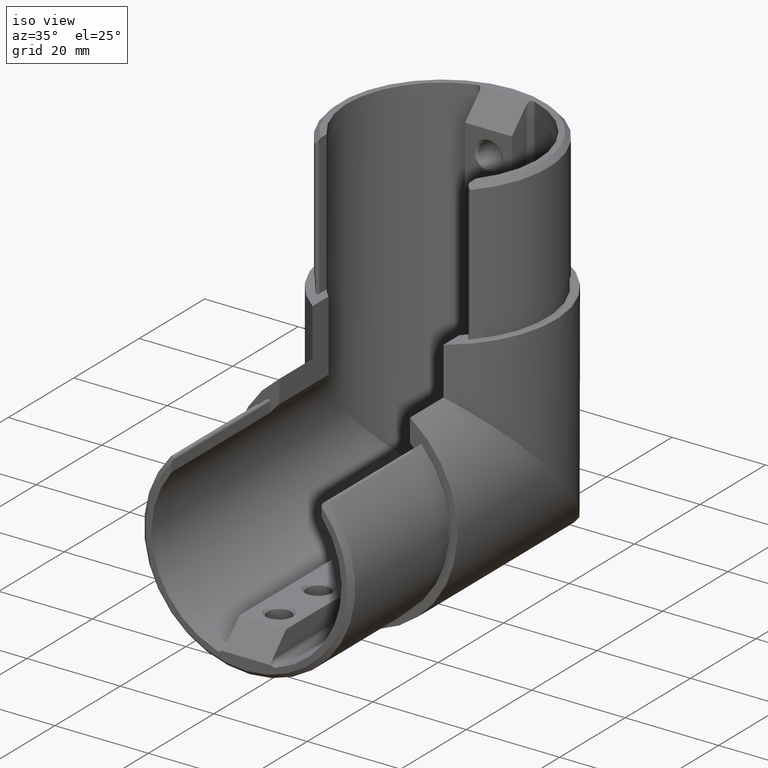
[diagram: clean part render]
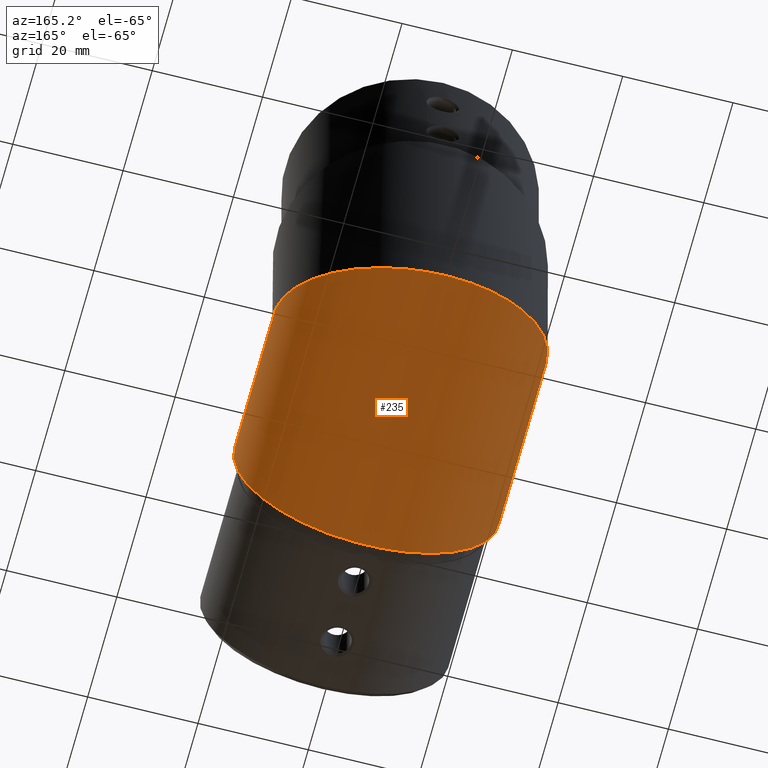
[diagram: tour spotlight — one face highlighted and labeled with its STEP entity id]
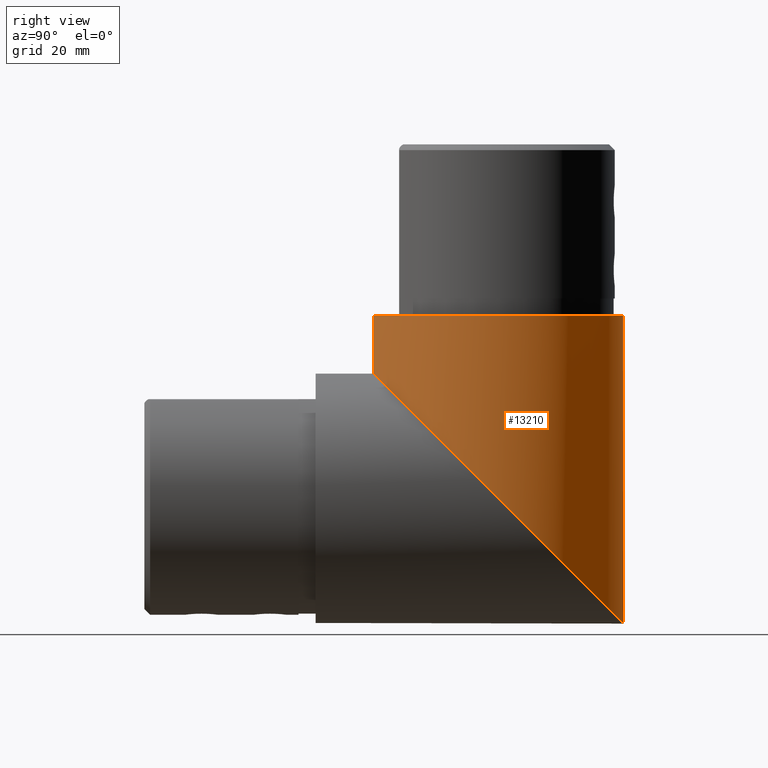
[diagram: tour spotlight — one face highlighted and labeled with its STEP entity id]
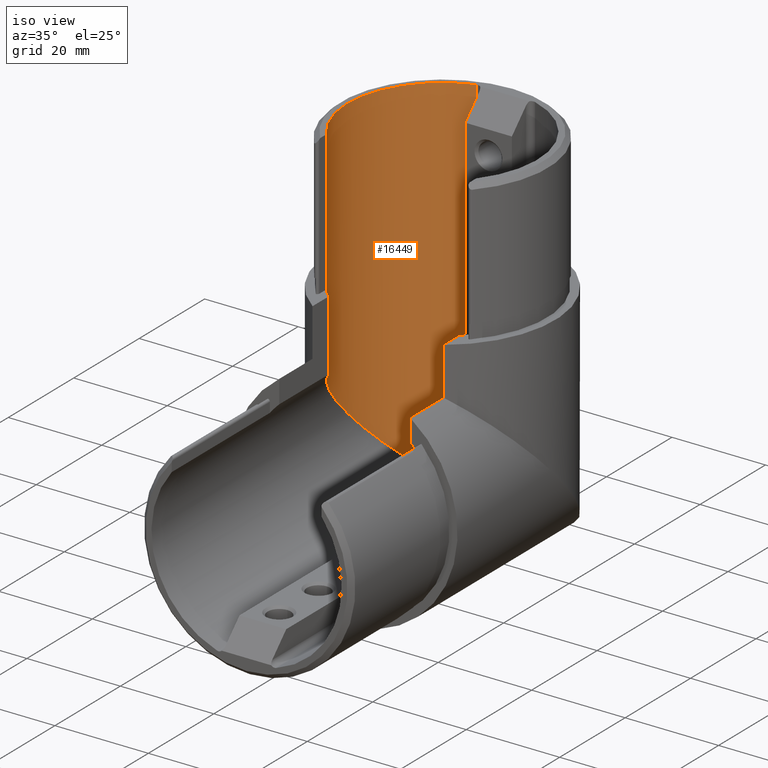
[diagram: tour spotlight — one face highlighted and labeled with its STEP entity id]
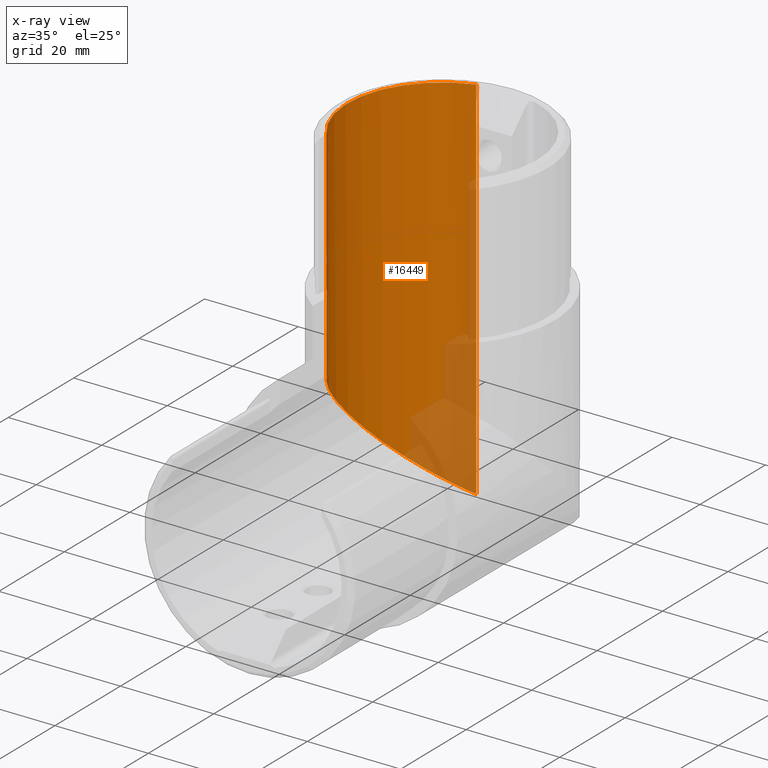
[diagram: x-ray of the same camera — body ghosted, this tour face saturated]
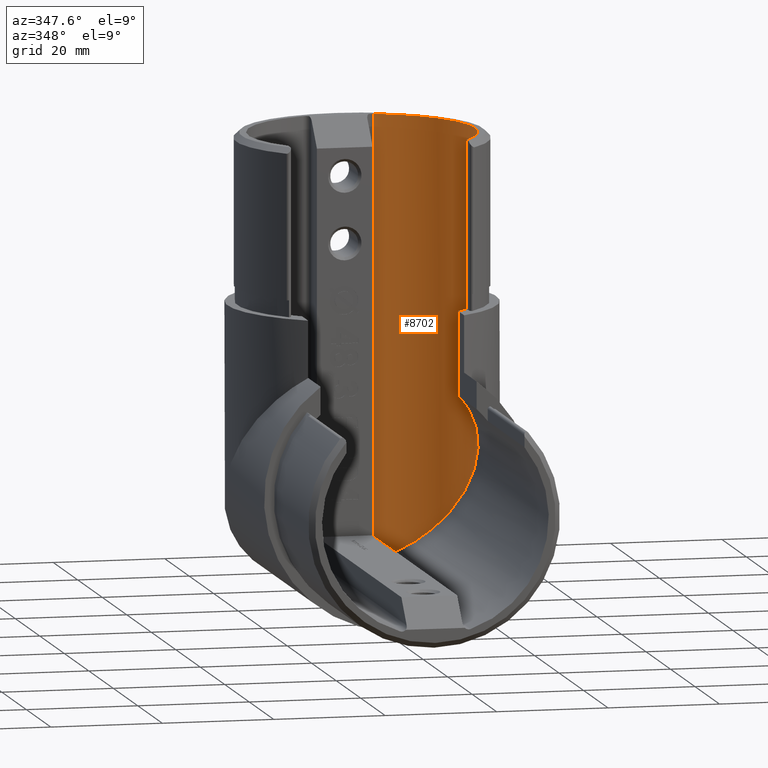
[diagram: tour spotlight — one face highlighted and labeled with its STEP entity id]
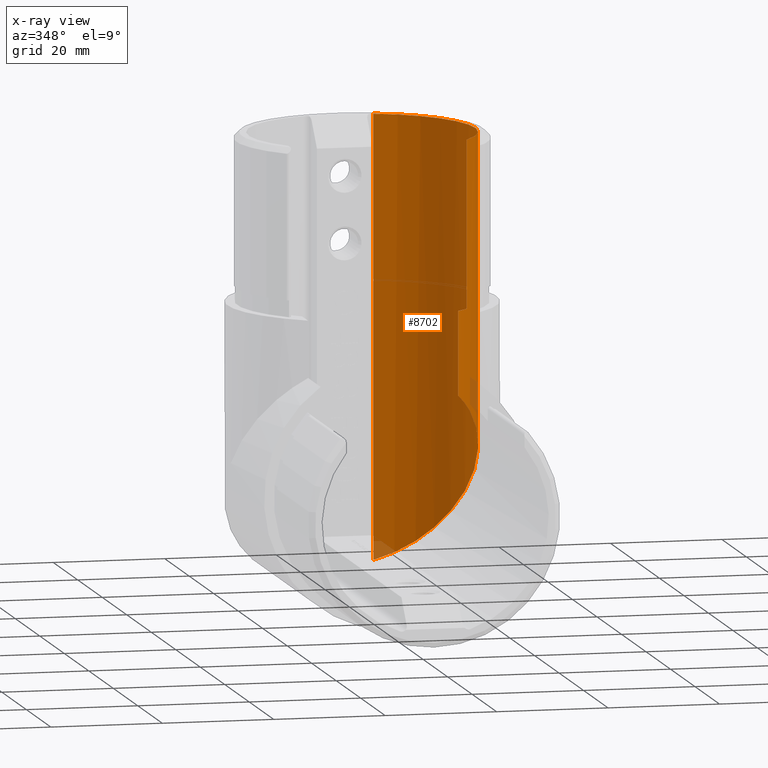
[diagram: x-ray of the same camera — body ghosted, this tour face saturated]
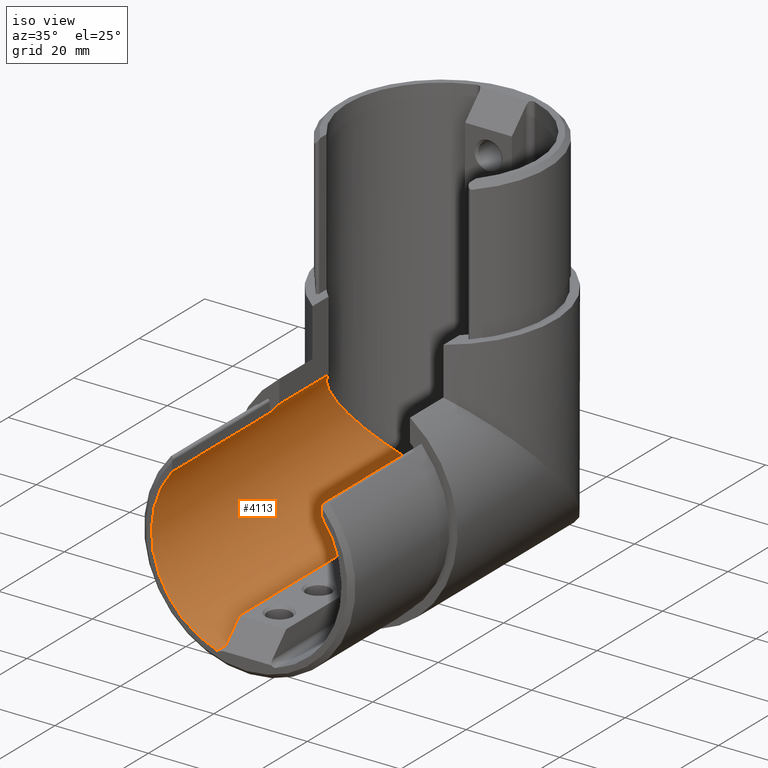
[diagram: tour spotlight — one face highlighted and labeled with its STEP entity id]
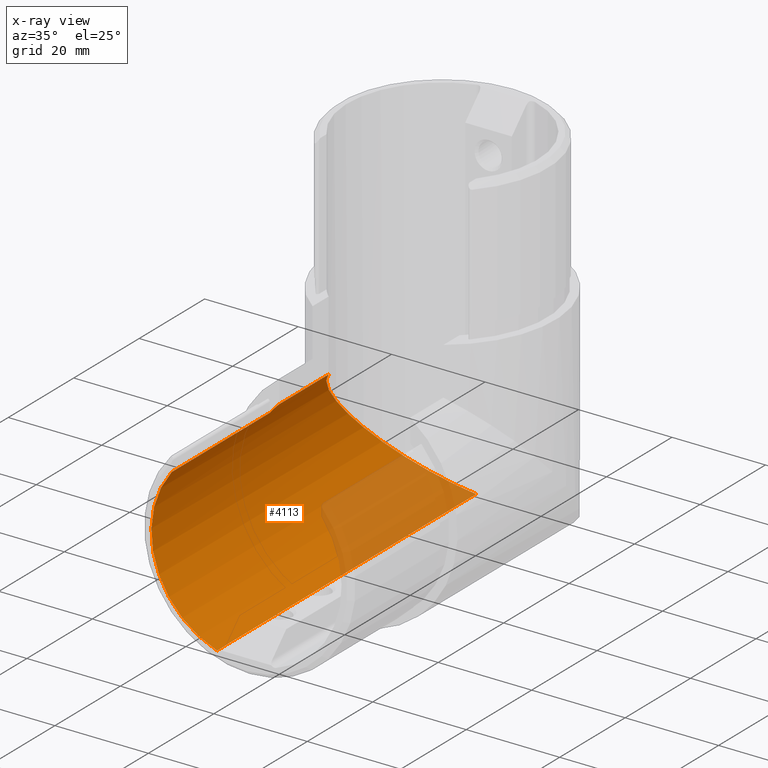
[diagram: x-ray of the same camera — body ghosted, this tour face saturated]
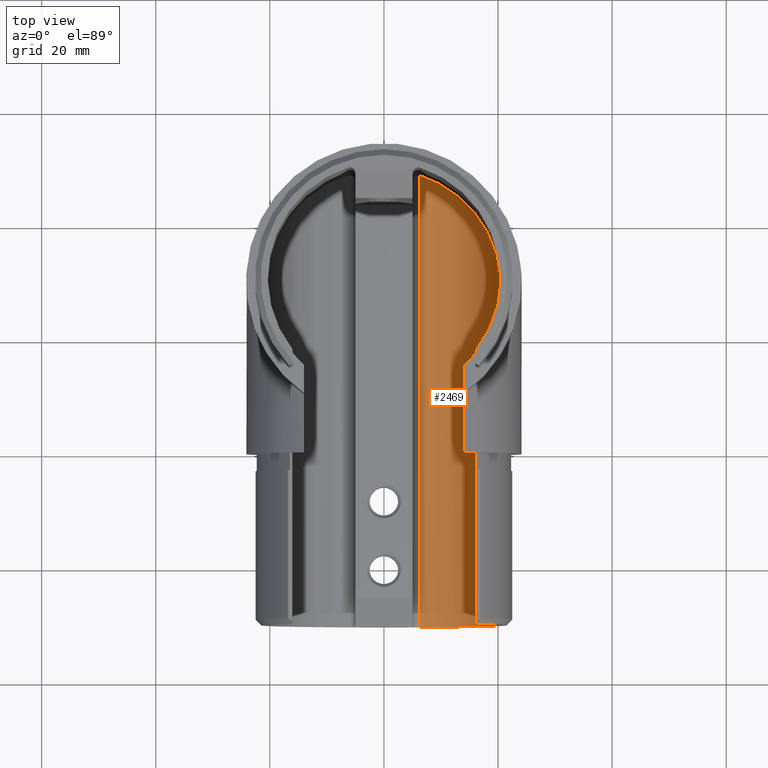
[diagram: tour spotlight — one face highlighted and labeled with its STEP entity id]
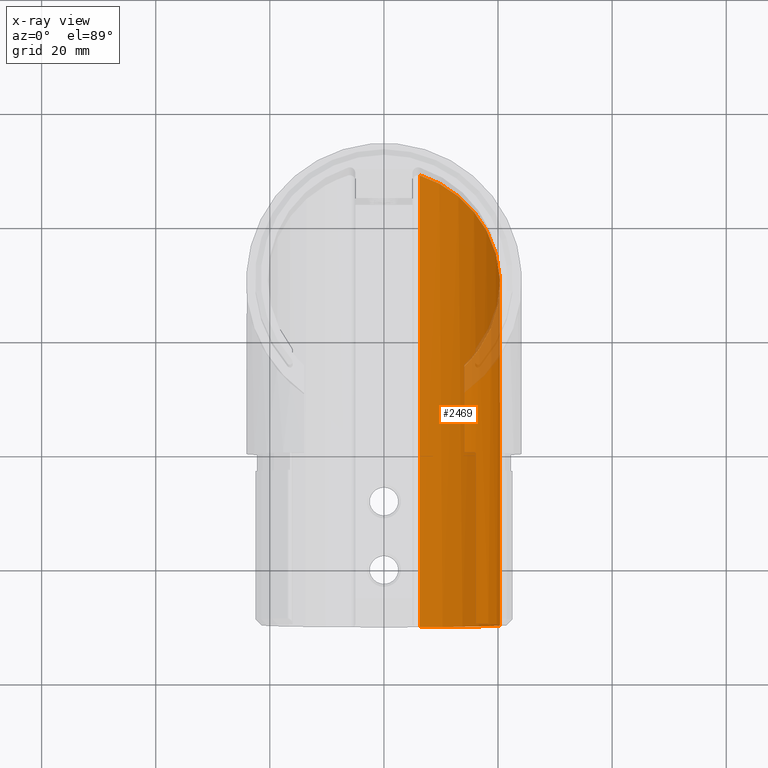
[diagram: x-ray of the same camera — body ghosted, this tour face saturated]
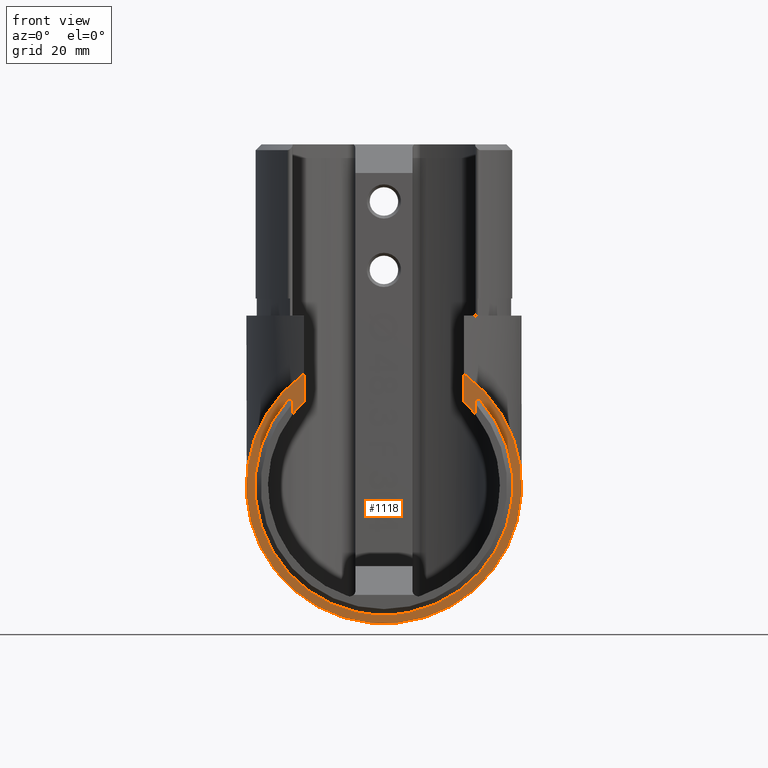
[diagram: tour spotlight — one face highlighted and labeled with its STEP entity id]
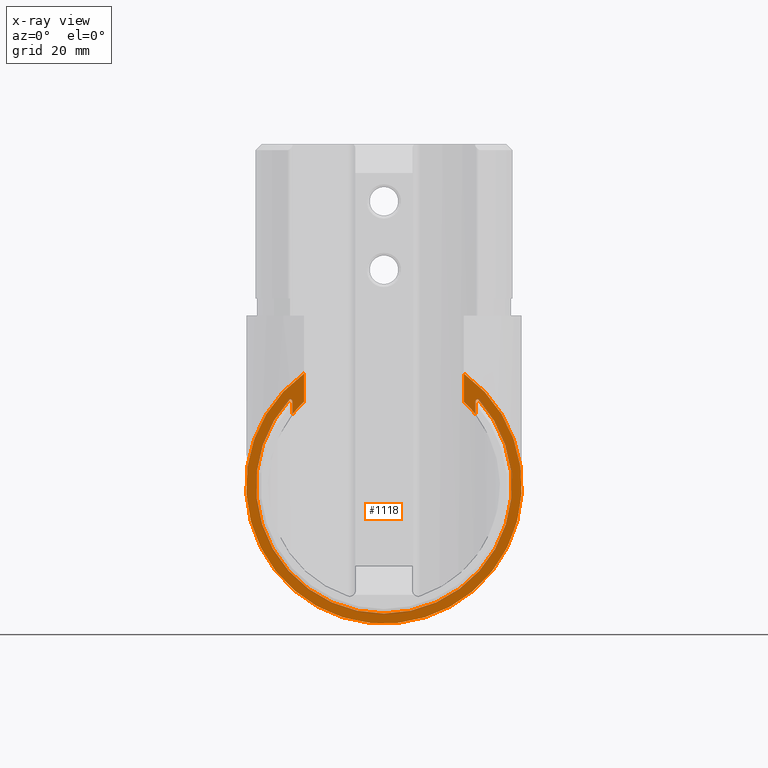
[diagram: x-ray of the same camera — body ghosted, this tour face saturated]
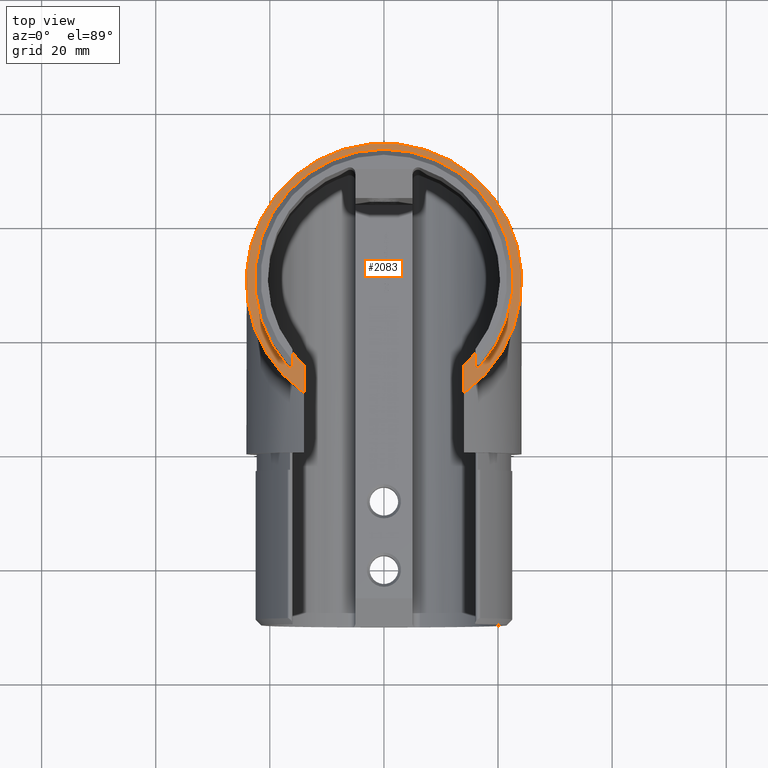
[diagram: tour spotlight — one face highlighted and labeled with its STEP entity id]
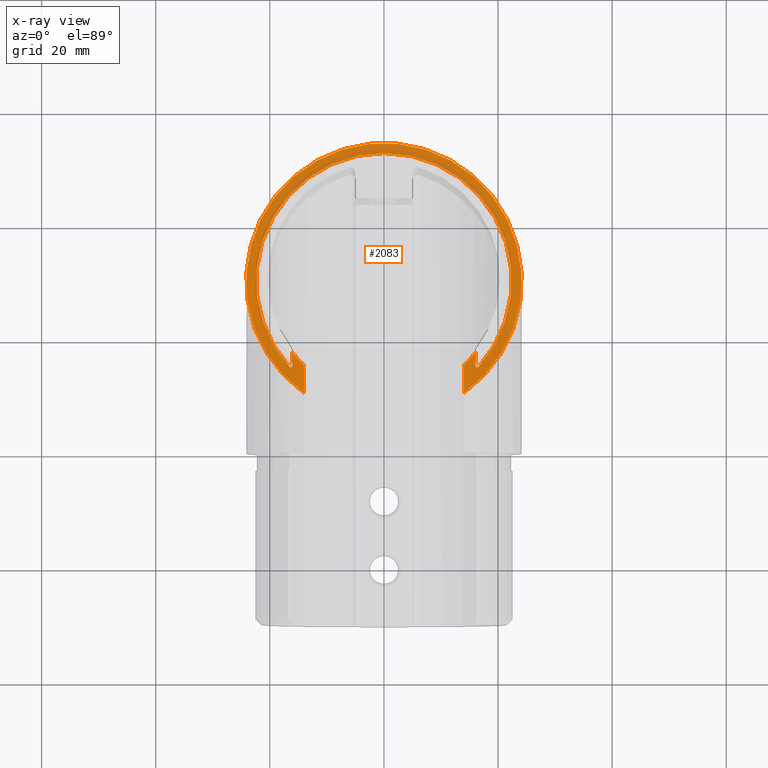
[diagram: x-ray of the same camera — body ghosted, this tour face saturated]
A machine part: a face-by-face anatomy tour. The part has 410 B-rep faces; the first image is the clean iso view, then the 8 largest visible faces are spotlighted one at a time (largest first), each with its STEP entity span.

Face 1 — auxiliary view, entity #235. In plain terms, the highlighted cylindrical surface (partial cylindrical patch) has radius 24.15 mm, axis along (-0, -1, -0).
Definition (entity closure, byte-faithful):
#47 = LINE ( 'NONE', #5272, #11693 ) ;
#235 = ADVANCED_FACE ( 'NONE', ( #20108 ), #15201, .T. ) ;
#1836 =( BOUNDED_CURVE ( )  B_SPLINE_CURVE ( 3, ( #3673, #17376, #5867, #13931, #15647, #25429, #3929 ),
 .UNSPECIFIED., .F., .F. ) 
 B_SPLINE_CURVE_WITH_KNOTS ( ( 4, 3, 4 ),
 ( 0.6183729178868663200, 3.141592653589793600, 5.664812389292720200 ),
 .UNSPECIFIED. ) 
 CURVE ( )  GEOMETRIC_REPRESENTATION_ITEM ( )  RATIONAL_B_SPLINE_CURVE ( ( 1.000000000000000000, 0.5361891820792521500, 0.5361891820792521500, 1.000000000000000000, 0.5361891820792522600, 0.5361891820792522600, 1.000000000000000000 ) ) 
 REPRESENTATION_ITEM ( '' )  );
#3504 = AXIS2_PLACEMENT_3D ( 'NONE', #22790, #21058, #17265 ) ;
#3673 = CARTESIAN_POINT ( 'NONE',  ( 14.00000000000000200, 10.17203008438116600, 19.67796991561883100 ) ) ;
#3929 = CARTESIAN_POINT ( 'NONE',  ( -13.99999999999999800, 10.17203008438115400, 19.67796991561883500 ) ) ;
#4538 = ORIENTED_EDGE ( 'NONE', *, *, #19030, .F. ) ;
#5050 = EDGE_CURVE ( 'NONE', #5055, #7092, #47, .T. ) ;
#5055 = VERTEX_POINT ( 'NONE', #20971 ) ;
#5117 = CARTESIAN_POINT ( 'NONE',  ( -13.99999999999999800, 0.0000000000000000000, 19.67796991561883500 ) ) ;
#5272 = CARTESIAN_POINT ( 'NONE',  ( -13.99999999999999800, 97.30703118671557700, 19.67796991561883500 ) ) ;
#5867 = CARTESIAN_POINT ( 'NONE',  ( 28.60289161877964000, 54.00000000000001400, -24.15000000000001300 ) ) ;
#7092 = VERTEX_POINT ( 'NONE', #5117 ) ;
#7791 = DIRECTION ( 'NONE',  ( -0.0000000000000000000, -1.000000000000000000, -0.0000000000000000000 ) ) ;
#8774 = LINE ( 'NONE', #11568, #15790 ) ;
#8927 = EDGE_CURVE ( 'NONE', #23894, #22897, #8774, .T. ) ;
#8970 = DIRECTION ( 'NONE',  ( -0.0000000000000000000, -1.000000000000000000, -0.0000000000000000000 ) ) ;
#9729 = EDGE_LOOP ( 'NONE', ( #4538, #18687, #18715, #14962 ) ) ;
#10930 = CARTESIAN_POINT ( 'NONE',  ( 0.0000000000000000000, 97.30703118671557700, 0.0000000000000000000 ) ) ;
#11568 = CARTESIAN_POINT ( 'NONE',  ( 14.00000000000000200, 97.30703118671557700, 19.67796991561883100 ) ) ;
#11693 = VECTOR ( 'NONE', #17176, 1000.000000000000000 ) ;
#13026 = CARTESIAN_POINT ( 'NONE',  ( 14.00000000000000200, 10.17203008438116600, 19.67796991561883100 ) ) ;
#13931 = CARTESIAN_POINT ( 'NONE',  ( -7.767232397938155200E-015, 54.00000000000000700, -24.15000000000000200 ) ) ;
#14962 = ORIENTED_EDGE ( 'NONE', *, *, #5050, .F. ) ;
#15201 = CYLINDRICAL_SURFACE ( 'NONE', #25138, 24.14999999999999900 ) ;
#15647 = CARTESIAN_POINT ( 'NONE',  ( -28.60289161877964400, 54.00000000000000000, -24.14999999999998800 ) ) ;
#15790 = VECTOR ( 'NONE', #7791, 1000.000000000000000 ) ;
#17176 = DIRECTION ( 'NONE',  ( -0.0000000000000000000, -1.000000000000000000, -0.0000000000000000000 ) ) ;
#17265 = DIRECTION ( 'NONE',  ( 0.0000000000000000000, 0.0000000000000000000, 1.000000000000000000 ) ) ;
#17376 = CARTESIAN_POINT ( 'NONE',  ( 37.30628740265225900, 26.75341653005054000, 3.096583469949461400 ) ) ;
#18036 = CARTESIAN_POINT ( 'NONE',  ( 14.00000000000000200, 0.0000000000000000000, 19.67796991561883100 ) ) ;
#18659 = DIRECTION ( 'NONE',  ( 0.0000000000000000000, 0.0000000000000000000, -1.000000000000000000 ) ) ;
#18687 = ORIENTED_EDGE ( 'NONE', *, *, #8927, .T. ) ;
#18715 = ORIENTED_EDGE ( 'NONE', *, *, #21088, .T. ) ;
#19030 = EDGE_CURVE ( 'NONE', #23894, #5055, #1836, .T. ) ;
#20108 = FACE_OUTER_BOUND ( 'NONE', #9729, .T. ) ;
#20971 = CARTESIAN_POINT ( 'NONE',  ( -13.99999999999999800, 10.17203008438115400, 19.67796991561883500 ) ) ;
#21058 = DIRECTION ( 'NONE',  ( 0.0000000000000000000, 1.000000000000000000, 0.0000000000000000000 ) ) ;
#21088 = EDGE_CURVE ( 'NONE', #22897, #7092, #21990, .T. ) ;
#21990 = CIRCLE ( 'NONE', #3504, 24.14999999999999900 ) ;
#22790 = CARTESIAN_POINT ( 'NONE',  ( 0.0000000000000000000, 0.0000000000000000000, 0.0000000000000000000 ) ) ;
#22897 = VERTEX_POINT ( 'NONE', #18036 ) ;
#23894 = VERTEX_POINT ( 'NONE', #13026 ) ;
#25138 = AXIS2_PLACEMENT_3D ( 'NONE', #10930, #8970, #18659 ) ;
#25429 = CARTESIAN_POINT ( 'NONE',  ( -37.30628740265225200, 26.75341653005052900, 3.096583469949471200 ) ) ;

Face 2 — right view, entity #13210. In plain terms, the highlighted cylindrical surface (partial cylindrical patch) has radius 24.15 mm, axis along (0, -0, 1).
Definition (entity closure, byte-faithful):
#1524 = DIRECTION ( 'NONE',  ( -0.0000000000000000000, 1.162293786249117100E-016, -1.000000000000000000 ) ) ;
#1836 =( BOUNDED_CURVE ( )  B_SPLINE_CURVE ( 3, ( #3673, #17376, #5867, #13931, #15647, #25429, #3929 ),
 .UNSPECIFIED., .F., .F. ) 
 B_SPLINE_CURVE_WITH_KNOTS ( ( 4, 3, 4 ),
 ( 0.6183729178868663200, 3.141592653589793600, 5.664812389292720200 ),
 .UNSPECIFIED. ) 
 CURVE ( )  GEOMETRIC_REPRESENTATION_ITEM ( )  RATIONAL_B_SPLINE_CURVE ( ( 1.000000000000000000, 0.5361891820792521500, 0.5361891820792521500, 1.000000000000000000, 0.5361891820792522600, 0.5361891820792522600, 1.000000000000000000 ) ) 
 REPRESENTATION_ITEM ( '' )  );
#3029 = DIRECTION ( 'NONE',  ( 0.0000000000000000000, -1.162293786249117100E-016, 1.000000000000000000 ) ) ;
#3507 = DIRECTION ( 'NONE',  ( 0.0000000000000000000, -1.000000000000000000, -1.436623996668163300E-016 ) ) ;
#3673 = CARTESIAN_POINT ( 'NONE',  ( 14.00000000000000200, 10.17203008438116600, 19.67796991561883100 ) ) ;
#3724 = LINE ( 'NONE', #14755, #10163 ) ;
#3929 = CARTESIAN_POINT ( 'NONE',  ( -13.99999999999999800, 10.17203008438115400, 19.67796991561883500 ) ) ;
#4543 = CARTESIAN_POINT ( 'NONE',  ( 14.00000000000000200, 10.17203008438116600, 29.84999999999999800 ) ) ;
#4923 = EDGE_CURVE ( 'NONE', #5055, #23300, #10819, .T. ) ;
#5055 = VERTEX_POINT ( 'NONE', #20971 ) ;
#5258 = AXIS2_PLACEMENT_3D ( 'NONE', #20778, #22746, #10992 ) ;
#5291 = CYLINDRICAL_SURFACE ( 'NONE', #5258, 24.14999999999999900 ) ;
#5867 = CARTESIAN_POINT ( 'NONE',  ( 28.60289161877964000, 54.00000000000001400, -24.15000000000001300 ) ) ;
#6135 = EDGE_CURVE ( 'NONE', #23894, #6398, #3724, .T. ) ;
#6398 = VERTEX_POINT ( 'NONE', #4543 ) ;
#8895 = CARTESIAN_POINT ( 'NONE',  ( -13.99999999999999800, 10.17203008438115400, 19.67796991561883500 ) ) ;
#10163 = VECTOR ( 'NONE', #3029, 1000.000000000000000 ) ;
#10819 = LINE ( 'NONE', #8895, #20318 ) ;
#10857 = DIRECTION ( 'NONE',  ( 0.0000000000000000000, -1.162293786249117100E-016, 1.000000000000000000 ) ) ;
#10992 = DIRECTION ( 'NONE',  ( 0.0000000000000000000, -1.000000000000000000, -1.162293786249117100E-016 ) ) ;
#13026 = CARTESIAN_POINT ( 'NONE',  ( 14.00000000000000200, 10.17203008438116600, 19.67796991561883100 ) ) ;
#13131 = ORIENTED_EDGE ( 'NONE', *, *, #6135, .F. ) ;
#13210 = ADVANCED_FACE ( 'NONE', ( #19093 ), #5291, .T. ) ;
#13931 = CARTESIAN_POINT ( 'NONE',  ( -7.767232397938155200E-015, 54.00000000000000700, -24.15000000000000200 ) ) ;
#14423 = EDGE_LOOP ( 'NONE', ( #18734, #25154, #13131, #15721 ) ) ;
#14665 = EDGE_CURVE ( 'NONE', #23300, #6398, #16159, .T. ) ;
#14755 = CARTESIAN_POINT ( 'NONE',  ( 14.00000000000000200, 10.17203008438116600, 19.67796991561883100 ) ) ;
#15647 = CARTESIAN_POINT ( 'NONE',  ( -28.60289161877964400, 54.00000000000000000, -24.14999999999998800 ) ) ;
#15721 = ORIENTED_EDGE ( 'NONE', *, *, #19030, .T. ) ;
#16159 = CIRCLE ( 'NONE', #21853, 24.14999999999999900 ) ;
#17376 = CARTESIAN_POINT ( 'NONE',  ( 37.30628740265225900, 26.75341653005054000, 3.096583469949461400 ) ) ;
#18734 = ORIENTED_EDGE ( 'NONE', *, *, #4923, .T. ) ;
#19030 = EDGE_CURVE ( 'NONE', #23894, #5055, #1836, .T. ) ;
#19093 = FACE_OUTER_BOUND ( 'NONE', #14423, .T. ) ;
#20318 = VECTOR ( 'NONE', #10857, 1000.000000000000000 ) ;
#20778 = CARTESIAN_POINT ( 'NONE',  ( 0.0000000000000000000, 29.85000000000000100, 0.0000000000000000000 ) ) ;
#20971 = CARTESIAN_POINT ( 'NONE',  ( -13.99999999999999800, 10.17203008438115400, 19.67796991561883500 ) ) ;
#20988 = CARTESIAN_POINT ( 'NONE',  ( -13.99999999999999100, 10.17203008438115800, 29.84999999999999800 ) ) ;
#21074 = CARTESIAN_POINT ( 'NONE',  ( 0.0000000000000000000, 29.84999999999999800, 29.85000000000000100 ) ) ;
#21853 = AXIS2_PLACEMENT_3D ( 'NONE', #21074, #1524, #3507 ) ;
#22746 = DIRECTION ( 'NONE',  ( 0.0000000000000000000, -1.162293786249117100E-016, 1.000000000000000000 ) ) ;
#23300 = VERTEX_POINT ( 'NONE', #20988 ) ;
#23894 = VERTEX_POINT ( 'NONE', #13026 ) ;
#25154 = ORIENTED_EDGE ( 'NONE', *, *, #14665, .T. ) ;
#25429 = CARTESIAN_POINT ( 'NONE',  ( -37.30628740265225200, 26.75341653005052900, 3.096583469949471200 ) ) ;

Face 3 — iso view, entity #16449. An x-ray twin of the same camera follows (body ghosted, this face saturated) — the face is partly hidden behind the body. In plain terms, the highlighted cylindrical surface (partial cylindrical patch) has radius 20.35 mm, axis along (0, -0, 1).
Definition (entity closure, byte-faithful):
#776 = ORIENTED_EDGE ( 'NONE', *, *, #3973, .T. ) ;
#790 = CARTESIAN_POINT ( 'NONE',  ( -14.00000000000000000, 15.08102914892170400, 29.84999999999999800 ) ) ;
#2635 =( BOUNDED_CURVE ( )  B_SPLINE_CURVE ( 3, ( #13481, #21371, #7298, #15206 ),
 .UNSPECIFIED., .F., .T. ) 
 B_SPLINE_CURVE_WITH_KNOTS ( ( 4, 4 ),
 ( 0.7586753513989574800, 2.826318083934701500 ),
 .UNSPECIFIED. ) 
 CURVE ( )  GEOMETRIC_REPRESENTATION_ITEM ( )  RATIONAL_B_SPLINE_CURVE ( ( 1.000000000000000000, 0.6743593604002585700, 0.6743593604002585700, 1.000000000000000000 ) ) 
 REPRESENTATION_ITEM ( '' )  );
#2768 = CARTESIAN_POINT ( 'NONE',  ( -16.00000000000000400, 17.27532306578018200, 59.85000000000000100 ) ) ;
#3256 = CARTESIAN_POINT ( 'NONE',  ( -16.00000000000000400, 17.27532306578018200, 29.85000000000000100 ) ) ;
#3725 = DIRECTION ( 'NONE',  ( 0.0000000000000000000, -1.162293786249117100E-016, 1.000000000000000000 ) ) ;
#3944 = FACE_OUTER_BOUND ( 'NONE', #13589, .T. ) ;
#3973 = EDGE_CURVE ( 'NONE', #15315, #23829, #2635, .T. ) ;
#3976 = ORIENTED_EDGE ( 'NONE', *, *, #9322, .F. ) ;
#4767 = VERTEX_POINT ( 'NONE', #790 ) ;
#4789 = EDGE_CURVE ( 'NONE', #24157, #22689, #14501, .T. ) ;
#5111 = VECTOR ( 'NONE', #3725, 1000.000000000000000 ) ;
#6013 = AXIS2_PLACEMENT_3D ( 'NONE', #22215, #11989, #17986 ) ;
#7298 = CARTESIAN_POINT ( 'NONE',  ( -22.74452179690631900, 43.83682799415024100, -13.98682799415024500 ) ) ;
#7421 = AXIS2_PLACEMENT_3D ( 'NONE', #16283, #20235, #22119 ) ;
#8565 = ORIENTED_EDGE ( 'NONE', *, *, #4789, .T. ) ;
#9149 = CARTESIAN_POINT ( 'NONE',  ( -14.00000000000000000, 15.08102914892170400, 14.76897085107828300 ) ) ;
#9322 = EDGE_CURVE ( 'NONE', #24157, #13903, #22866, .T. ) ;
#10229 = LINE ( 'NONE', #9149, #15126 ) ;
#10329 = CARTESIAN_POINT ( 'NONE',  ( 0.0000000000000000000, 29.85000000000000100, 0.0000000000000000000 ) ) ;
#10346 = CARTESIAN_POINT ( 'NONE',  ( -16.00000000000000400, 17.27532306578018200, 59.85000000000000100 ) ) ;
#10616 = EDGE_CURVE ( 'NONE', #22689, #4767, #14234, .T. ) ;
#10980 = EDGE_CURVE ( 'NONE', #15315, #4767, #10229, .T. ) ;
#11989 = DIRECTION ( 'NONE',  ( 0.0000000000000000000, -1.162293786249117100E-016, 1.000000000000000000 ) ) ;
#12149 = AXIS2_PLACEMENT_3D ( 'NONE', #10329, #22515, #24482 ) ;
#13481 = CARTESIAN_POINT ( 'NONE',  ( -14.00000000000000000, 15.08102914892170400, 14.76897085107828300 ) ) ;
#13589 = EDGE_LOOP ( 'NONE', ( #776, #25046, #3976, #8565, #19843, #15088 ) ) ;
#13673 = DIRECTION ( 'NONE',  ( 0.0000000000000000000, -1.162293786249117100E-016, 1.000000000000000000 ) ) ;
#13714 = DIRECTION ( 'NONE',  ( -0.0000000000000000000, -0.0000000000000000000, -1.000000000000000000 ) ) ;
#13903 = VERTEX_POINT ( 'NONE', #23253 ) ;
#14234 = CIRCLE ( 'NONE', #6013, 20.35000000000000100 ) ;
#14501 = LINE ( 'NONE', #10346, #24331 ) ;
#15088 = ORIENTED_EDGE ( 'NONE', *, *, #10980, .F. ) ;
#15126 = VECTOR ( 'NONE', #13673, 1000.000000000000000 ) ;
#15206 = CARTESIAN_POINT ( 'NONE',  ( -6.310077519379846400, 49.19697448438430600, -19.34697448438430500 ) ) ;
#15315 = VERTEX_POINT ( 'NONE', #23763 ) ;
#15505 = LINE ( 'NONE', #17767, #5111 ) ;
#16283 = CARTESIAN_POINT ( 'NONE',  ( 0.0000000000000000000, 29.84999999999999800, 59.85000000000000100 ) ) ;
#16449 = ADVANCED_FACE ( 'NONE', ( #3944 ), #20189, .F. ) ;
#17767 = CARTESIAN_POINT ( 'NONE',  ( -6.310077519379846400, 49.19697448438429900, 2.248686822592009200E-015 ) ) ;
#17986 = DIRECTION ( 'NONE',  ( 0.0000000000000000000, -1.000000000000000000, -1.704887937077943000E-016 ) ) ;
#19697 = EDGE_CURVE ( 'NONE', #23829, #13903, #15505, .T. ) ;
#19843 = ORIENTED_EDGE ( 'NONE', *, *, #10616, .T. ) ;
#20189 = CYLINDRICAL_SURFACE ( 'NONE', #12149, 20.35000000000000100 ) ;
#20235 = DIRECTION ( 'NONE',  ( -0.0000000000000000000, -0.0000000000000000000, -1.000000000000000000 ) ) ;
#21371 = CARTESIAN_POINT ( 'NONE',  ( -26.54562198778768300, 26.97344261496930800, 2.876557385030698500 ) ) ;
#22119 = DIRECTION ( 'NONE',  ( 1.000000000000000000, 0.0000000000000000000, 0.0000000000000000000 ) ) ;
#22215 = CARTESIAN_POINT ( 'NONE',  ( 0.0000000000000000000, 29.84999999999999800, 29.85000000000000100 ) ) ;
#22515 = DIRECTION ( 'NONE',  ( 0.0000000000000000000, -1.162293786249117100E-016, 1.000000000000000000 ) ) ;
#22689 = VERTEX_POINT ( 'NONE', #3256 ) ;
#22866 = CIRCLE ( 'NONE', #7421, 20.35000000000000100 ) ;
#23253 = CARTESIAN_POINT ( 'NONE',  ( -6.310077519379848200, 49.19697448438429900, 59.85000000000000100 ) ) ;
#23763 = CARTESIAN_POINT ( 'NONE',  ( -14.00000000000000000, 15.08102914892170400, 14.76897085107828300 ) ) ;
#23829 = VERTEX_POINT ( 'NONE', #24357 ) ;
#24157 = VERTEX_POINT ( 'NONE', #2768 ) ;
#24331 = VECTOR ( 'NONE', #13714, 1000.000000000000000 ) ;
#24357 = CARTESIAN_POINT ( 'NONE',  ( -6.310077519379846400, 49.19697448438430600, -19.34697448438430500 ) ) ;
#24482 = DIRECTION ( 'NONE',  ( 0.0000000000000000000, -1.000000000000000000, -1.162293786249117100E-016 ) ) ;
#25046 = ORIENTED_EDGE ( 'NONE', *, *, #19697, .T. ) ;

Face 4 — auxiliary view, entity #8702. An x-ray twin of the same camera follows (body ghosted, this face saturated) — the face is partly hidden behind the body. In plain terms, the highlighted cylindrical surface (partial cylindrical patch) has radius 20.35 mm, axis along (0, -0, 1).
Definition (entity closure, byte-faithful):
#149 = DIRECTION ( 'NONE',  ( -0.0000000000000000000, 1.162293786249117100E-016, -1.000000000000000000 ) ) ;
#158 = ORIENTED_EDGE ( 'NONE', *, *, #5445, .F. ) ;
#548 = CARTESIAN_POINT ( 'NONE',  ( 16.00000000000000400, 17.27532306578018200, 59.85000000000000100 ) ) ;
#1544 = ORIENTED_EDGE ( 'NONE', *, *, #1740, .T. ) ;
#1588 = VECTOR ( 'NONE', #17803, 1000.000000000000000 ) ;
#1740 = EDGE_CURVE ( 'NONE', #7607, #15213, #20425, .T. ) ;
#1789 = CARTESIAN_POINT ( 'NONE',  ( 14.00000000000000200, 15.08102914892171900, 14.76897085107828100 ) ) ;
#2018 = CARTESIAN_POINT ( 'NONE',  ( 14.00000000000000200, 15.08102914892171900, 14.76897085107828100 ) ) ;
#2542 = DIRECTION ( 'NONE',  ( 0.0000000000000000000, -1.000000000000000000, -1.704887937077943000E-016 ) ) ;
#2715 = CARTESIAN_POINT ( 'NONE',  ( 13.99999999999999800, 15.08102914892171500, 29.85000000000000100 ) ) ;
#3567 = LINE ( 'NONE', #12976, #16123 ) ;
#4029 = EDGE_CURVE ( 'NONE', #15213, #17955, #12539, .T. ) ;
#4966 = ORIENTED_EDGE ( 'NONE', *, *, #21636, .F. ) ;
#5445 = EDGE_CURVE ( 'NONE', #7607, #10855, #17532, .T. ) ;
#6001 = CARTESIAN_POINT ( 'NONE',  ( 6.310077519379850800, 49.19697448438429900, -19.34697448438430100 ) ) ;
#6334 = EDGE_CURVE ( 'NONE', #17955, #12575, #18763, .T. ) ;
#6542 = CARTESIAN_POINT ( 'NONE',  ( 6.310077519379847300, 49.19697448438429900, 2.248686822592009200E-015 ) ) ;
#7607 = VERTEX_POINT ( 'NONE', #12522 ) ;
#7739 = CIRCLE ( 'NONE', #12633, 20.35000000000000100 ) ;
#8439 = AXIS2_PLACEMENT_3D ( 'NONE', #22413, #14245, #12470 ) ;
#8702 = ADVANCED_FACE ( 'NONE', ( #14884 ), #25008, .F. ) ;
#9347 = VECTOR ( 'NONE', #149, 1000.000000000000000 ) ;
#10192 = DIRECTION ( 'NONE',  ( 0.0000000000000000000, -1.162293786249117100E-016, 1.000000000000000000 ) ) ;
#10337 = DIRECTION ( 'NONE',  ( 0.0000000000000000000, -1.162293786249117100E-016, 1.000000000000000000 ) ) ;
#10604 = CARTESIAN_POINT ( 'NONE',  ( 0.0000000000000000000, 29.84999999999999800, 29.85000000000000100 ) ) ;
#10855 = VERTEX_POINT ( 'NONE', #548 ) ;
#11124 = EDGE_CURVE ( 'NONE', #12575, #17875, #7739, .T. ) ;
#12470 = DIRECTION ( 'NONE',  ( 1.000000000000000000, 0.0000000000000000000, 0.0000000000000000000 ) ) ;
#12522 = CARTESIAN_POINT ( 'NONE',  ( 6.310077519379848200, 49.19697448438429900, 59.85000000000000100 ) ) ;
#12539 =( BOUNDED_CURVE ( )  B_SPLINE_CURVE ( 3, ( #6001, #21624, #17675, #19475 ),
 .UNSPECIFIED., .F., .T. ) 
 B_SPLINE_CURVE_WITH_KNOTS ( ( 4, 4 ),
 ( 3.456867223244885200, 5.524509955780629000 ),
 .UNSPECIFIED. ) 
 CURVE ( )  GEOMETRIC_REPRESENTATION_ITEM ( )  RATIONAL_B_SPLINE_CURVE ( ( 1.000000000000000000, 0.6743593604002585700, 0.6743593604002585700, 1.000000000000000000 ) ) 
 REPRESENTATION_ITEM ( '' )  );
#12575 = VERTEX_POINT ( 'NONE', #2715 ) ;
#12633 = AXIS2_PLACEMENT_3D ( 'NONE', #10604, #10337, #2542 ) ;
#12976 = CARTESIAN_POINT ( 'NONE',  ( 16.00000000000000400, 17.27532306578018200, 59.85000000000000100 ) ) ;
#13201 = ORIENTED_EDGE ( 'NONE', *, *, #4029, .T. ) ;
#13204 = AXIS2_PLACEMENT_3D ( 'NONE', #16013, #10192, #16104 ) ;
#14095 = ORIENTED_EDGE ( 'NONE', *, *, #6334, .T. ) ;
#14245 = DIRECTION ( 'NONE',  ( -0.0000000000000000000, -0.0000000000000000000, -1.000000000000000000 ) ) ;
#14884 = FACE_OUTER_BOUND ( 'NONE', #21161, .T. ) ;
#15213 = VERTEX_POINT ( 'NONE', #18003 ) ;
#16013 = CARTESIAN_POINT ( 'NONE',  ( 0.0000000000000000000, 29.85000000000000100, 0.0000000000000000000 ) ) ;
#16104 = DIRECTION ( 'NONE',  ( 0.0000000000000000000, -1.000000000000000000, -1.162293786249117100E-016 ) ) ;
#16123 = VECTOR ( 'NONE', #18723, 1000.000000000000000 ) ;
#17532 = CIRCLE ( 'NONE', #8439, 20.35000000000000100 ) ;
#17675 = CARTESIAN_POINT ( 'NONE',  ( 26.54562198778768300, 26.97344261496930100, 2.876557385030700200 ) ) ;
#17803 = DIRECTION ( 'NONE',  ( 0.0000000000000000000, -1.162293786249117100E-016, 1.000000000000000000 ) ) ;
#17875 = VERTEX_POINT ( 'NONE', #23029 ) ;
#17955 = VERTEX_POINT ( 'NONE', #2018 ) ;
#18003 = CARTESIAN_POINT ( 'NONE',  ( 6.310077519379850800, 49.19697448438429900, -19.34697448438430100 ) ) ;
#18723 = DIRECTION ( 'NONE',  ( -0.0000000000000000000, -0.0000000000000000000, -1.000000000000000000 ) ) ;
#18763 = LINE ( 'NONE', #1789, #1588 ) ;
#19475 = CARTESIAN_POINT ( 'NONE',  ( 14.00000000000000200, 15.08102914892171900, 14.76897085107828100 ) ) ;
#20425 = LINE ( 'NONE', #6542, #9347 ) ;
#21161 = EDGE_LOOP ( 'NONE', ( #158, #1544, #13201, #14095, #22345, #4966 ) ) ;
#21624 = CARTESIAN_POINT ( 'NONE',  ( 22.74452179690633000, 43.83682799415023400, -13.98682799415023000 ) ) ;
#21636 = EDGE_CURVE ( 'NONE', #10855, #17875, #3567, .T. ) ;
#22345 = ORIENTED_EDGE ( 'NONE', *, *, #11124, .T. ) ;
#22413 = CARTESIAN_POINT ( 'NONE',  ( 0.0000000000000000000, 29.84999999999999800, 59.85000000000000100 ) ) ;
#23029 = CARTESIAN_POINT ( 'NONE',  ( 16.00000000000000400, 17.27532306578018200, 29.85000000000000100 ) ) ;
#25008 = CYLINDRICAL_SURFACE ( 'NONE', #13204, 20.35000000000000100 ) ;

Face 5 — iso view, entity #4113. An x-ray twin of the same camera follows (body ghosted, this face saturated) — the face is partly hidden behind the body. In plain terms, the highlighted cylindrical surface (partial cylindrical patch) has radius 20.35 mm, axis along (-0, -1, -0).
Definition (entity closure, byte-faithful):
#614 = ORIENTED_EDGE ( 'NONE', *, *, #23807, .F. ) ;
#734 = DIRECTION ( 'NONE',  ( -0.0000000000000000000, -1.000000000000000000, -0.0000000000000000000 ) ) ;
#1219 = CARTESIAN_POINT ( 'NONE',  ( -16.00000000000000400, 0.0000000000000000000, 12.57467693421981800 ) ) ;
#1858 = VERTEX_POINT ( 'NONE', #21850 ) ;
#2524 = AXIS2_PLACEMENT_3D ( 'NONE', #21538, #17849, #17766 ) ;
#2635 =( BOUNDED_CURVE ( )  B_SPLINE_CURVE ( 3, ( #13481, #21371, #7298, #15206 ),
 .UNSPECIFIED., .F., .T. ) 
 B_SPLINE_CURVE_WITH_KNOTS ( ( 4, 4 ),
 ( 0.7586753513989574800, 2.826318083934701500 ),
 .UNSPECIFIED. ) 
 CURVE ( )  GEOMETRIC_REPRESENTATION_ITEM ( )  RATIONAL_B_SPLINE_CURVE ( ( 1.000000000000000000, 0.6743593604002585700, 0.6743593604002585700, 1.000000000000000000 ) ) 
 REPRESENTATION_ITEM ( '' )  );
#2801 = DIRECTION ( 'NONE',  ( 0.0000000000000000000, 0.0000000000000000000, 1.000000000000000000 ) ) ;
#3784 = AXIS2_PLACEMENT_3D ( 'NONE', #22716, #24681, #10799 ) ;
#3795 = CARTESIAN_POINT ( 'NONE',  ( -14.00000000000000000, 0.0000000000000000000, 14.76897085107828300 ) ) ;
#3973 = EDGE_CURVE ( 'NONE', #15315, #23829, #2635, .T. ) ;
#4113 = ADVANCED_FACE ( 'NONE', ( #12051 ), #14193, .F. ) ;
#4229 = EDGE_CURVE ( 'NONE', #8956, #17431, #4708, .T. ) ;
#4515 = CIRCLE ( 'NONE', #3784, 20.35000000000000100 ) ;
#4708 = CIRCLE ( 'NONE', #9888, 20.35000000000000100 ) ;
#4902 = DIRECTION ( 'NONE',  ( -0.0000000000000000000, 1.000000000000000000, 2.220446049250313100E-016 ) ) ;
#5980 = EDGE_CURVE ( 'NONE', #23990, #23829, #7375, .T. ) ;
#6242 = DIRECTION ( 'NONE',  ( 0.0000000000000000000, 1.000000000000000000, 0.0000000000000000000 ) ) ;
#7298 = CARTESIAN_POINT ( 'NONE',  ( -22.74452179690631900, 43.83682799415024100, -13.98682799415024500 ) ) ;
#7375 = LINE ( 'NONE', #16034, #24595 ) ;
#7385 = DIRECTION ( 'NONE',  ( -0.0000000000000000000, -1.000000000000000000, -0.0000000000000000000 ) ) ;
#8425 = LINE ( 'NONE', #8485, #8735 ) ;
#8485 = CARTESIAN_POINT ( 'NONE',  ( -16.00000000000000400, -29.99999999999999600, 12.57467693421980600 ) ) ;
#8735 = VECTOR ( 'NONE', #4902, 1000.000000000000000 ) ;
#8956 = VERTEX_POINT ( 'NONE', #3795 ) ;
#9888 = AXIS2_PLACEMENT_3D ( 'NONE', #10761, #734, #2801 ) ;
#10761 = CARTESIAN_POINT ( 'NONE',  ( 0.0000000000000000000, 0.0000000000000000000, 0.0000000000000000000 ) ) ;
#10799 = DIRECTION ( 'NONE',  ( 1.000000000000000000, 0.0000000000000000000, 0.0000000000000000000 ) ) ;
#12051 = FACE_OUTER_BOUND ( 'NONE', #19052, .T. ) ;
#12258 = EDGE_CURVE ( 'NONE', #15315, #8956, #12359, .T. ) ;
#12359 = LINE ( 'NONE', #15295, #24636 ) ;
#13481 = CARTESIAN_POINT ( 'NONE',  ( -14.00000000000000000, 15.08102914892170400, 14.76897085107828300 ) ) ;
#14193 = CYLINDRICAL_SURFACE ( 'NONE', #2524, 20.35000000000000100 ) ;
#14580 = EDGE_CURVE ( 'NONE', #1858, #23990, #4515, .T. ) ;
#15206 = CARTESIAN_POINT ( 'NONE',  ( -6.310077519379846400, 49.19697448438430600, -19.34697448438430500 ) ) ;
#15235 = ORIENTED_EDGE ( 'NONE', *, *, #4229, .T. ) ;
#15287 = ORIENTED_EDGE ( 'NONE', *, *, #5980, .T. ) ;
#15295 = CARTESIAN_POINT ( 'NONE',  ( -14.00000000000000000, 97.30703118671557700, 14.76897085107828300 ) ) ;
#15315 = VERTEX_POINT ( 'NONE', #23763 ) ;
#16034 = CARTESIAN_POINT ( 'NONE',  ( -6.310077519379855300, 97.30703118671557700, -19.34697448438429700 ) ) ;
#17431 = VERTEX_POINT ( 'NONE', #1219 ) ;
#17766 = DIRECTION ( 'NONE',  ( 0.0000000000000000000, 0.0000000000000000000, -1.000000000000000000 ) ) ;
#17849 = DIRECTION ( 'NONE',  ( -0.0000000000000000000, -1.000000000000000000, -0.0000000000000000000 ) ) ;
#19052 = EDGE_LOOP ( 'NONE', ( #24854, #15287, #21381, #19913, #15235, #614 ) ) ;
#19913 = ORIENTED_EDGE ( 'NONE', *, *, #12258, .T. ) ;
#21371 = CARTESIAN_POINT ( 'NONE',  ( -26.54562198778768300, 26.97344261496930800, 2.876557385030698500 ) ) ;
#21381 = ORIENTED_EDGE ( 'NONE', *, *, #3973, .F. ) ;
#21538 = CARTESIAN_POINT ( 'NONE',  ( 0.0000000000000000000, 97.30703118671557700, 0.0000000000000000000 ) ) ;
#21744 = CARTESIAN_POINT ( 'NONE',  ( -6.310077519379857900, -29.99999999999998900, -19.34697448438430500 ) ) ;
#21850 = CARTESIAN_POINT ( 'NONE',  ( -16.00000000000000400, -29.99999999999999600, 12.57467693421980600 ) ) ;
#22716 = CARTESIAN_POINT ( 'NONE',  ( 0.0000000000000000000, -29.99999999999999300, -1.013078509970455300E-014 ) ) ;
#23763 = CARTESIAN_POINT ( 'NONE',  ( -14.00000000000000000, 15.08102914892170400, 14.76897085107828300 ) ) ;
#23807 = EDGE_CURVE ( 'NONE', #1858, #17431, #8425, .T. ) ;
#23829 = VERTEX_POINT ( 'NONE', #24357 ) ;
#23990 = VERTEX_POINT ( 'NONE', #21744 ) ;
#24357 = CARTESIAN_POINT ( 'NONE',  ( -6.310077519379846400, 49.19697448438430600, -19.34697448438430500 ) ) ;
#24595 = VECTOR ( 'NONE', #6242, 1000.000000000000000 ) ;
#24636 = VECTOR ( 'NONE', #7385, 1000.000000000000000 ) ;
#24681 = DIRECTION ( 'NONE',  ( 0.0000000000000000000, -1.000000000000000000, -2.220446049250313100E-016 ) ) ;
#24854 = ORIENTED_EDGE ( 'NONE', *, *, #14580, .T. ) ;

Face 6 — top view, entity #2469. An x-ray twin of the same camera follows (body ghosted, this face saturated) — the face is partly hidden behind the body. In plain terms, the highlighted cylindrical surface (partial cylindrical patch) has radius 20.35 mm, axis along (-0, -1, -0).
Definition (entity closure, byte-faithful):
#290 = AXIS2_PLACEMENT_3D ( 'NONE', #12220, #14445, #22350 ) ;
#749 = CARTESIAN_POINT ( 'NONE',  ( 0.0000000000000000000, -29.99999999999999300, -1.013078509970455300E-014 ) ) ;
#1030 = CARTESIAN_POINT ( 'NONE',  ( 0.0000000000000000000, 97.30703118671557700, 0.0000000000000000000 ) ) ;
#1328 = CARTESIAN_POINT ( 'NONE',  ( 14.00000000000000200, 97.30703118671557700, 14.76897085107828100 ) ) ;
#2018 = CARTESIAN_POINT ( 'NONE',  ( 14.00000000000000200, 15.08102914892171900, 14.76897085107828100 ) ) ;
#2469 = ADVANCED_FACE ( 'NONE', ( #18856 ), #19446, .F. ) ;
#2564 = CARTESIAN_POINT ( 'NONE',  ( 16.00000000000000400, -29.99999999999999600, 12.57467693421980600 ) ) ;
#2968 = ORIENTED_EDGE ( 'NONE', *, *, #11081, .T. ) ;
#4029 = EDGE_CURVE ( 'NONE', #15213, #17955, #12539, .T. ) ;
#4155 = LINE ( 'NONE', #2564, #11207 ) ;
#4297 = DIRECTION ( 'NONE',  ( -0.0000000000000000000, -1.000000000000000000, -0.0000000000000000000 ) ) ;
#4374 = EDGE_CURVE ( 'NONE', #17955, #6934, #22188, .T. ) ;
#5961 = EDGE_LOOP ( 'NONE', ( #16572, #11545, #15270, #19461, #2968, #22370 ) ) ;
#6001 = CARTESIAN_POINT ( 'NONE',  ( 6.310077519379850800, 49.19697448438429900, -19.34697448438430100 ) ) ;
#6834 = CARTESIAN_POINT ( 'NONE',  ( 16.00000000000000400, -29.99999999999999600, 12.57467693421980600 ) ) ;
#6934 = VERTEX_POINT ( 'NONE', #16435 ) ;
#7090 = CARTESIAN_POINT ( 'NONE',  ( 6.310077519379857900, -29.99999999999998900, -19.34697448438430500 ) ) ;
#7684 = CARTESIAN_POINT ( 'NONE',  ( 6.310077519379855300, 97.30703118671557700, -19.34697448438429700 ) ) ;
#8276 = VERTEX_POINT ( 'NONE', #6834 ) ;
#9160 = DIRECTION ( 'NONE',  ( -0.0000000000000000000, -1.000000000000000000, -0.0000000000000000000 ) ) ;
#10559 = EDGE_CURVE ( 'NONE', #15213, #18021, #12712, .T. ) ;
#11081 = EDGE_CURVE ( 'NONE', #22043, #6934, #12068, .T. ) ;
#11207 = VECTOR ( 'NONE', #22283, 1000.000000000000000 ) ;
#11545 = ORIENTED_EDGE ( 'NONE', *, *, #10559, .T. ) ;
#12068 = CIRCLE ( 'NONE', #290, 20.35000000000000100 ) ;
#12220 = CARTESIAN_POINT ( 'NONE',  ( 0.0000000000000000000, 0.0000000000000000000, 0.0000000000000000000 ) ) ;
#12539 =( BOUNDED_CURVE ( )  B_SPLINE_CURVE ( 3, ( #6001, #21624, #17675, #19475 ),
 .UNSPECIFIED., .F., .T. ) 
 B_SPLINE_CURVE_WITH_KNOTS ( ( 4, 4 ),
 ( 3.456867223244885200, 5.524509955780629000 ),
 .UNSPECIFIED. ) 
 CURVE ( )  GEOMETRIC_REPRESENTATION_ITEM ( )  RATIONAL_B_SPLINE_CURVE ( ( 1.000000000000000000, 0.6743593604002585700, 0.6743593604002585700, 1.000000000000000000 ) ) 
 REPRESENTATION_ITEM ( '' )  );
#12637 = CIRCLE ( 'NONE', #23806, 20.35000000000000100 ) ;
#12712 = LINE ( 'NONE', #7684, #13905 ) ;
#13017 = DIRECTION ( 'NONE',  ( 0.0000000000000000000, 0.0000000000000000000, -1.000000000000000000 ) ) ;
#13501 = AXIS2_PLACEMENT_3D ( 'NONE', #1030, #9160, #13017 ) ;
#13734 = EDGE_CURVE ( 'NONE', #18021, #8276, #12637, .T. ) ;
#13905 = VECTOR ( 'NONE', #4297, 1000.000000000000000 ) ;
#14445 = DIRECTION ( 'NONE',  ( -0.0000000000000000000, -1.000000000000000000, -0.0000000000000000000 ) ) ;
#14795 = DIRECTION ( 'NONE',  ( 0.0000000000000000000, -1.000000000000000000, -2.220446049250313100E-016 ) ) ;
#15030 = DIRECTION ( 'NONE',  ( -0.0000000000000000000, -1.000000000000000000, -0.0000000000000000000 ) ) ;
#15213 = VERTEX_POINT ( 'NONE', #18003 ) ;
#15270 = ORIENTED_EDGE ( 'NONE', *, *, #13734, .T. ) ;
#16435 = CARTESIAN_POINT ( 'NONE',  ( 14.00000000000000200, 0.0000000000000000000, 14.76897085107828100 ) ) ;
#16572 = ORIENTED_EDGE ( 'NONE', *, *, #4029, .F. ) ;
#16629 = CARTESIAN_POINT ( 'NONE',  ( 16.00000000000000400, 3.469446951953614200E-015, 12.57467693421981300 ) ) ;
#16642 = VECTOR ( 'NONE', #15030, 1000.000000000000000 ) ;
#17675 = CARTESIAN_POINT ( 'NONE',  ( 26.54562198778768300, 26.97344261496930100, 2.876557385030700200 ) ) ;
#17955 = VERTEX_POINT ( 'NONE', #2018 ) ;
#18003 = CARTESIAN_POINT ( 'NONE',  ( 6.310077519379850800, 49.19697448438429900, -19.34697448438430100 ) ) ;
#18021 = VERTEX_POINT ( 'NONE', #7090 ) ;
#18305 = DIRECTION ( 'NONE',  ( 1.000000000000000000, 0.0000000000000000000, 0.0000000000000000000 ) ) ;
#18856 = FACE_OUTER_BOUND ( 'NONE', #5961, .T. ) ;
#19446 = CYLINDRICAL_SURFACE ( 'NONE', #13501, 20.35000000000000100 ) ;
#19461 = ORIENTED_EDGE ( 'NONE', *, *, #23138, .T. ) ;
#19475 = CARTESIAN_POINT ( 'NONE',  ( 14.00000000000000200, 15.08102914892171900, 14.76897085107828100 ) ) ;
#21624 = CARTESIAN_POINT ( 'NONE',  ( 22.74452179690633000, 43.83682799415023400, -13.98682799415023000 ) ) ;
#22043 = VERTEX_POINT ( 'NONE', #16629 ) ;
#22188 = LINE ( 'NONE', #1328, #16642 ) ;
#22283 = DIRECTION ( 'NONE',  ( -0.0000000000000000000, 1.000000000000000000, 2.220446049250313100E-016 ) ) ;
#22350 = DIRECTION ( 'NONE',  ( 0.0000000000000000000, 0.0000000000000000000, 1.000000000000000000 ) ) ;
#22370 = ORIENTED_EDGE ( 'NONE', *, *, #4374, .F. ) ;
#23138 = EDGE_CURVE ( 'NONE', #8276, #22043, #4155, .T. ) ;
#23806 = AXIS2_PLACEMENT_3D ( 'NONE', #749, #14795, #18305 ) ;

Face 7 — front view, entity #1118. An x-ray twin of the same camera follows (body ghosted, this face saturated) — the face is partly hidden behind the body. In plain terms, the highlighted planar face has unit normal (0, 1, 0).
Definition (entity closure, byte-faithful):
#290 = AXIS2_PLACEMENT_3D ( 'NONE', #12220, #14445, #22350 ) ;
#457 = DIRECTION ( 'NONE',  ( 0.0000000000000000000, 1.000000000000000000, 0.0000000000000000000 ) ) ;
#500 = DIRECTION ( 'NONE',  ( 0.0000000000000000000, 1.000000000000000000, 0.0000000000000000000 ) ) ;
#565 = AXIS2_PLACEMENT_3D ( 'NONE', #6511, #4842, #2698 ) ;
#734 = DIRECTION ( 'NONE',  ( -0.0000000000000000000, -1.000000000000000000, -0.0000000000000000000 ) ) ;
#1118 = ADVANCED_FACE ( 'NONE', ( #7463 ), #22026, .F. ) ;
#1219 = CARTESIAN_POINT ( 'NONE',  ( -16.00000000000000400, 0.0000000000000000000, 12.57467693421981800 ) ) ;
#1327 = ORIENTED_EDGE ( 'NONE', *, *, #11295, .T. ) ;
#1378 = LINE ( 'NONE', #22886, #3817 ) ;
#1430 = CARTESIAN_POINT ( 'NONE',  ( 0.0000000000000000000, 3.469446951953614200E-015, -3.469446951953614200E-015 ) ) ;
#2534 = EDGE_CURVE ( 'NONE', #6934, #22897, #1378, .T. ) ;
#2610 = DIRECTION ( 'NONE',  ( 0.0000000000000000000, 0.0000000000000000000, 1.000000000000000000 ) ) ;
#2698 = DIRECTION ( 'NONE',  ( 0.0000000000000000000, 0.0000000000000000000, 1.000000000000000000 ) ) ;
#2801 = DIRECTION ( 'NONE',  ( 0.0000000000000000000, 0.0000000000000000000, 1.000000000000000000 ) ) ;
#3060 = AXIS2_PLACEMENT_3D ( 'NONE', #1430, #23099, #7455 ) ;
#3099 = ORIENTED_EDGE ( 'NONE', *, *, #25182, .T. ) ;
#3362 = ORIENTED_EDGE ( 'NONE', *, *, #21088, .F. ) ;
#3504 = AXIS2_PLACEMENT_3D ( 'NONE', #22790, #21058, #17265 ) ;
#3795 = CARTESIAN_POINT ( 'NONE',  ( -14.00000000000000000, 0.0000000000000000000, 14.76897085107828300 ) ) ;
#3817 = VECTOR ( 'NONE', #5054, 1000.000000000000000 ) ;
#4229 = EDGE_CURVE ( 'NONE', #8956, #17431, #4708, .T. ) ;
#4375 = CIRCLE ( 'NONE', #565, 0.5000000000000004400 ) ;
#4708 = CIRCLE ( 'NONE', #9888, 20.35000000000000100 ) ;
#4817 = CARTESIAN_POINT ( 'NONE',  ( 16.00000000000000400, 3.469446951953614200E-015, 12.57467693421981300 ) ) ;
#4842 = DIRECTION ( 'NONE',  ( 0.0000000000000000000, 1.000000000000000000, 0.0000000000000000000 ) ) ;
#5054 = DIRECTION ( 'NONE',  ( -3.533762083002485800E-016, -0.0000000000000000000, 1.000000000000000000 ) ) ;
#5117 = CARTESIAN_POINT ( 'NONE',  ( -13.99999999999999800, 0.0000000000000000000, 19.67796991561883500 ) ) ;
#5124 = VERTEX_POINT ( 'NONE', #17671 ) ;
#5255 = VERTEX_POINT ( 'NONE', #12194 ) ;
#5360 = VECTOR ( 'NONE', #13148, 1000.000000000000000 ) ;
#5501 = EDGE_CURVE ( 'NONE', #5539, #5255, #4375, .T. ) ;
#5539 = VERTEX_POINT ( 'NONE', #20865 ) ;
#6511 = CARTESIAN_POINT ( 'NONE',  ( -16.50000000000000400, 0.0000000000000000000, 14.70238075959128000 ) ) ;
#6588 = AXIS2_PLACEMENT_3D ( 'NONE', #8379, #500, #22111 ) ;
#6934 = VERTEX_POINT ( 'NONE', #16435 ) ;
#7092 = VERTEX_POINT ( 'NONE', #5117 ) ;
#7262 = EDGE_CURVE ( 'NONE', #5539, #15762, #16421, .T. ) ;
#7455 = DIRECTION ( 'NONE',  ( 0.0000000000000000000, 1.058152263001196300E-016, -1.000000000000000000 ) ) ;
#7463 = FACE_OUTER_BOUND ( 'NONE', #17646, .T. ) ;
#7974 = ORIENTED_EDGE ( 'NONE', *, *, #5501, .T. ) ;
#8072 = VECTOR ( 'NONE', #16288, 1000.000000000000000 ) ;
#8246 = CARTESIAN_POINT ( 'NONE',  ( 16.50000000000000400, 0.0000000000000000000, 14.70238075959128000 ) ) ;
#8379 = CARTESIAN_POINT ( 'NONE',  ( 0.0000000000000000000, 0.0000000000000000000, 0.0000000000000000000 ) ) ;
#8956 = VERTEX_POINT ( 'NONE', #3795 ) ;
#9014 = LINE ( 'NONE', #4817, #8072 ) ;
#9888 = AXIS2_PLACEMENT_3D ( 'NONE', #10761, #734, #2801 ) ;
#10063 = EDGE_CURVE ( 'NONE', #7092, #8956, #10595, .T. ) ;
#10144 = ORIENTED_EDGE ( 'NONE', *, *, #7262, .F. ) ;
#10570 = ORIENTED_EDGE ( 'NONE', *, *, #4229, .F. ) ;
#10595 = LINE ( 'NONE', #21197, #5360 ) ;
#10761 = CARTESIAN_POINT ( 'NONE',  ( 0.0000000000000000000, 0.0000000000000000000, 0.0000000000000000000 ) ) ;
#10891 = EDGE_CURVE ( 'NONE', #5124, #15762, #11758, .T. ) ;
#11081 = EDGE_CURVE ( 'NONE', #22043, #6934, #12068, .T. ) ;
#11295 = EDGE_CURVE ( 'NONE', #5255, #17431, #20047, .T. ) ;
#11758 = CIRCLE ( 'NONE', #16061, 0.5000000000000004400 ) ;
#11867 = ORIENTED_EDGE ( 'NONE', *, *, #11081, .F. ) ;
#12068 = CIRCLE ( 'NONE', #290, 20.35000000000000100 ) ;
#12194 = CARTESIAN_POINT ( 'NONE',  ( -16.00000000000000400, 2.997001796651528900E-015, 14.70238075959128000 ) ) ;
#12220 = CARTESIAN_POINT ( 'NONE',  ( 0.0000000000000000000, 0.0000000000000000000, 0.0000000000000000000 ) ) ;
#13148 = DIRECTION ( 'NONE',  ( -3.533762083002485800E-016, -0.0000000000000000000, -1.000000000000000000 ) ) ;
#14445 = DIRECTION ( 'NONE',  ( -0.0000000000000000000, -1.000000000000000000, -0.0000000000000000000 ) ) ;
#15762 = VERTEX_POINT ( 'NONE', #23558 ) ;
#16061 = AXIS2_PLACEMENT_3D ( 'NONE', #8246, #457, #2610 ) ;
#16288 = DIRECTION ( 'NONE',  ( 0.0000000000000000000, -2.220446049250313100E-016, 1.000000000000000000 ) ) ;
#16421 = CIRCLE ( 'NONE', #3060, 22.40000000000000600 ) ;
#16435 = CARTESIAN_POINT ( 'NONE',  ( 14.00000000000000200, 0.0000000000000000000, 14.76897085107828100 ) ) ;
#16629 = CARTESIAN_POINT ( 'NONE',  ( 16.00000000000000400, 3.469446951953614200E-015, 12.57467693421981300 ) ) ;
#16675 = CARTESIAN_POINT ( 'NONE',  ( -16.00000000000000400, 3.469446951953614200E-015, 12.57467693421981300 ) ) ;
#17265 = DIRECTION ( 'NONE',  ( 0.0000000000000000000, 0.0000000000000000000, 1.000000000000000000 ) ) ;
#17281 = VECTOR ( 'NONE', #24569, 1000.000000000000000 ) ;
#17431 = VERTEX_POINT ( 'NONE', #1219 ) ;
#17646 = EDGE_LOOP ( 'NONE', ( #3362, #20051, #11867, #3099, #24055, #10144, #7974, #1327, #10570, #17719 ) ) ;
#17671 = CARTESIAN_POINT ( 'NONE',  ( 16.00000000000000400, 2.997001796651528900E-015, 14.70238075959128000 ) ) ;
#17719 = ORIENTED_EDGE ( 'NONE', *, *, #10063, .F. ) ;
#18036 = CARTESIAN_POINT ( 'NONE',  ( 14.00000000000000200, 0.0000000000000000000, 19.67796991561883100 ) ) ;
#20047 = LINE ( 'NONE', #16675, #17281 ) ;
#20051 = ORIENTED_EDGE ( 'NONE', *, *, #2534, .F. ) ;
#20865 = CARTESIAN_POINT ( 'NONE',  ( -16.45338357376953200, 0.0000000000000000000, 15.20020292543516800 ) ) ;
#21058 = DIRECTION ( 'NONE',  ( 0.0000000000000000000, 1.000000000000000000, 0.0000000000000000000 ) ) ;
#21088 = EDGE_CURVE ( 'NONE', #22897, #7092, #21990, .T. ) ;
#21197 = CARTESIAN_POINT ( 'NONE',  ( -14.00000000000000000, 0.0000000000000000000, 14.76897085107828300 ) ) ;
#21990 = CIRCLE ( 'NONE', #3504, 24.14999999999999900 ) ;
#22026 = PLANE ( 'NONE',  #6588 ) ;
#22043 = VERTEX_POINT ( 'NONE', #16629 ) ;
#22111 = DIRECTION ( 'NONE',  ( 0.0000000000000000000, -0.0000000000000000000, 1.000000000000000000 ) ) ;
#22350 = DIRECTION ( 'NONE',  ( 0.0000000000000000000, 0.0000000000000000000, 1.000000000000000000 ) ) ;
#22790 = CARTESIAN_POINT ( 'NONE',  ( 0.0000000000000000000, 0.0000000000000000000, 0.0000000000000000000 ) ) ;
#22886 = CARTESIAN_POINT ( 'NONE',  ( 14.00000000000000200, 0.0000000000000000000, 19.67796991561883100 ) ) ;
#22897 = VERTEX_POINT ( 'NONE', #18036 ) ;
#23099 = DIRECTION ( 'NONE',  ( -0.0000000000000000000, -1.000000000000000000, -1.058152263001196400E-016 ) ) ;
#23558 = CARTESIAN_POINT ( 'NONE',  ( 16.45338357376951800, -7.834168549996043000E-017, 15.20020292543529900 ) ) ;
#24055 = ORIENTED_EDGE ( 'NONE', *, *, #10891, .T. ) ;
#24569 = DIRECTION ( 'NONE',  ( 0.0000000000000000000, 2.220446049250313100E-016, -1.000000000000000000 ) ) ;
#25182 = EDGE_CURVE ( 'NONE', #22043, #5124, #9014, .T. ) ;

Face 8 — top view, entity #2083. An x-ray twin of the same camera follows (body ghosted, this face saturated) — the face is partly hidden behind the body. In plain terms, the highlighted planar face has unit normal (0, -0, 1).
Definition (entity closure, byte-faithful):
#182 = VECTOR ( 'NONE', #8800, 1000.000000000000000 ) ;
#790 = CARTESIAN_POINT ( 'NONE',  ( -14.00000000000000000, 15.08102914892170400, 29.84999999999999800 ) ) ;
#854 = DIRECTION ( 'NONE',  ( -0.0000000000000000000, 1.162293786249117100E-016, -1.000000000000000000 ) ) ;
#876 = AXIS2_PLACEMENT_3D ( 'NONE', #19394, #7893, #17508 ) ;
#1164 = CIRCLE ( 'NONE', #876, 22.40000000000000600 ) ;
#1262 = EDGE_CURVE ( 'NONE', #20438, #15956, #9070, .T. ) ;
#1336 = DIRECTION ( 'NONE',  ( 3.533762083002486800E-016, -1.000000000000000000, -1.162293786249117100E-016 ) ) ;
#1524 = DIRECTION ( 'NONE',  ( -0.0000000000000000000, 1.162293786249117100E-016, -1.000000000000000000 ) ) ;
#2083 = ADVANCED_FACE ( 'NONE', ( #5627 ), #15080, .T. ) ;
#2293 = AXIS2_PLACEMENT_3D ( 'NONE', #6026, #15896, #7657 ) ;
#2542 = DIRECTION ( 'NONE',  ( 0.0000000000000000000, -1.000000000000000000, -1.704887937077943000E-016 ) ) ;
#2546 = ORIENTED_EDGE ( 'NONE', *, *, #10616, .F. ) ;
#2715 = CARTESIAN_POINT ( 'NONE',  ( 13.99999999999999800, 15.08102914892171500, 29.85000000000000100 ) ) ;
#3038 = EDGE_CURVE ( 'NONE', #6398, #12575, #18831, .T. ) ;
#3215 = ORIENTED_EDGE ( 'NONE', *, *, #1262, .T. ) ;
#3217 = CARTESIAN_POINT ( 'NONE',  ( -16.00000000000000400, 15.14761924040871400, 29.84999999999999800 ) ) ;
#3256 = CARTESIAN_POINT ( 'NONE',  ( -16.00000000000000400, 17.27532306578018200, 29.85000000000000100 ) ) ;
#3507 = DIRECTION ( 'NONE',  ( 0.0000000000000000000, -1.000000000000000000, -1.436623996668163300E-016 ) ) ;
#4367 = VERTEX_POINT ( 'NONE', #3217 ) ;
#4543 = CARTESIAN_POINT ( 'NONE',  ( 14.00000000000000200, 10.17203008438116600, 29.84999999999999800 ) ) ;
#4767 = VERTEX_POINT ( 'NONE', #790 ) ;
#5036 = VECTOR ( 'NONE', #1336, 1000.000000000000000 ) ;
#5517 = DIRECTION ( 'NONE',  ( 3.533762083002486800E-016, 1.000000000000000000, 1.162293786249117100E-016 ) ) ;
#5627 = FACE_OUTER_BOUND ( 'NONE', #13701, .T. ) ;
#6013 = AXIS2_PLACEMENT_3D ( 'NONE', #22215, #11989, #17986 ) ;
#6026 = CARTESIAN_POINT ( 'NONE',  ( -16.50000000000000400, 15.14761924040871400, 29.84999999999999800 ) ) ;
#6398 = VERTEX_POINT ( 'NONE', #4543 ) ;
#6650 = CARTESIAN_POINT ( 'NONE',  ( 16.50000000000000400, 15.14761924040871400, 29.84999999999999800 ) ) ;
#6665 = CARTESIAN_POINT ( 'NONE',  ( -16.00000000000000400, 17.27532306578018200, 29.84999999999999800 ) ) ;
#7657 = DIRECTION ( 'NONE',  ( -6.938893903907222100E-015, -1.000000000000000000, 0.0000000000000000000 ) ) ;
#7739 = CIRCLE ( 'NONE', #12633, 20.35000000000000100 ) ;
#7893 = DIRECTION ( 'NONE',  ( -0.0000000000000000000, 1.162293786249116600E-016, -1.000000000000000000 ) ) ;
#8800 = DIRECTION ( 'NONE',  ( 0.0000000000000000000, -1.000000000000000000, 0.0000000000000000000 ) ) ;
#9070 = CIRCLE ( 'NONE', #9238, 0.5000000000000004400 ) ;
#9153 = ORIENTED_EDGE ( 'NONE', *, *, #22096, .F. ) ;
#9238 = AXIS2_PLACEMENT_3D ( 'NONE', #6650, #854, #22461 ) ;
#9593 = VECTOR ( 'NONE', #5517, 1000.000000000000000 ) ;
#9801 = ORIENTED_EDGE ( 'NONE', *, *, #3038, .F. ) ;
#10208 = ORIENTED_EDGE ( 'NONE', *, *, #14887, .F. ) ;
#10337 = DIRECTION ( 'NONE',  ( 0.0000000000000000000, -1.162293786249117100E-016, 1.000000000000000000 ) ) ;
#10604 = CARTESIAN_POINT ( 'NONE',  ( 0.0000000000000000000, 29.84999999999999800, 29.85000000000000100 ) ) ;
#10616 = EDGE_CURVE ( 'NONE', #22689, #4767, #14234, .T. ) ;
#11124 = EDGE_CURVE ( 'NONE', #12575, #17875, #7739, .T. ) ;
#11219 = DIRECTION ( 'NONE',  ( 0.0000000000000000000, -1.000000000000000000, -1.162293786249117100E-016 ) ) ;
#11319 = EDGE_CURVE ( 'NONE', #4767, #23300, #20684, .T. ) ;
#11989 = DIRECTION ( 'NONE',  ( 0.0000000000000000000, -1.162293786249117100E-016, 1.000000000000000000 ) ) ;
#12247 = ORIENTED_EDGE ( 'NONE', *, *, #11124, .F. ) ;
#12575 = VERTEX_POINT ( 'NONE', #2715 ) ;
#12633 = AXIS2_PLACEMENT_3D ( 'NONE', #10604, #10337, #2542 ) ;
#13302 = CARTESIAN_POINT ( 'NONE',  ( -14.00000000000001400, 56.19403016781863900, 29.85000000000000100 ) ) ;
#13545 = EDGE_CURVE ( 'NONE', #4367, #25448, #14792, .T. ) ;
#13701 = EDGE_LOOP ( 'NONE', ( #24563, #3215, #10208, #12247, #9801, #19008, #21658, #2546, #9153, #18414 ) ) ;
#14234 = CIRCLE ( 'NONE', #6013, 20.35000000000000100 ) ;
#14573 = DIRECTION ( 'NONE',  ( -0.0000000000000000000, 1.000000000000000000, -0.0000000000000000000 ) ) ;
#14665 = EDGE_CURVE ( 'NONE', #23300, #6398, #16159, .T. ) ;
#14792 = CIRCLE ( 'NONE', #2293, 0.5000000000000004400 ) ;
#14887 = EDGE_CURVE ( 'NONE', #17875, #15956, #24445, .T. ) ;
#15080 = PLANE ( 'NONE',  #19395 ) ;
#15141 = CARTESIAN_POINT ( 'NONE',  ( 14.00000000000001800, 53.73953063554836300, 29.85000000000000500 ) ) ;
#15238 = CARTESIAN_POINT ( 'NONE',  ( 0.0000000000000000000, 32.08601504219058100, 29.85000000000000100 ) ) ;
#15896 = DIRECTION ( 'NONE',  ( -0.0000000000000000000, 1.162293786249117100E-016, -1.000000000000000000 ) ) ;
#15956 = VERTEX_POINT ( 'NONE', #16697 ) ;
#16159 = CIRCLE ( 'NONE', #21853, 24.14999999999999900 ) ;
#16697 = CARTESIAN_POINT ( 'NONE',  ( 16.00000000000000400, 15.14761924040871400, 29.84999999999999800 ) ) ;
#17508 = DIRECTION ( 'NONE',  ( 0.0000000000000000000, 1.000000000000000000, 1.548860246407863100E-016 ) ) ;
#17537 = CARTESIAN_POINT ( 'NONE',  ( -16.45338357376951800, 14.64979707456469500, 29.85000000000000100 ) ) ;
#17875 = VERTEX_POINT ( 'NONE', #23029 ) ;
#17986 = DIRECTION ( 'NONE',  ( 0.0000000000000000000, -1.000000000000000000, -1.704887937077943000E-016 ) ) ;
#18414 = ORIENTED_EDGE ( 'NONE', *, *, #13545, .T. ) ;
#18831 = LINE ( 'NONE', #15141, #9593 ) ;
#19008 = ORIENTED_EDGE ( 'NONE', *, *, #14665, .F. ) ;
#19394 = CARTESIAN_POINT ( 'NONE',  ( 0.0000000000000000000, 29.84999999999999800, 29.85000000000000100 ) ) ;
#19395 = AXIS2_PLACEMENT_3D ( 'NONE', #15238, #20924, #11219 ) ;
#19678 = EDGE_CURVE ( 'NONE', #25448, #20438, #1164, .T. ) ;
#19703 = CARTESIAN_POINT ( 'NONE',  ( 16.45338357376951800, 14.64979707456469500, 29.85000000000000100 ) ) ;
#20438 = VERTEX_POINT ( 'NONE', #19703 ) ;
#20456 = LINE ( 'NONE', #6665, #22589 ) ;
#20684 = LINE ( 'NONE', #13302, #5036 ) ;
#20924 = DIRECTION ( 'NONE',  ( 0.0000000000000000000, -1.162293786249117100E-016, 1.000000000000000000 ) ) ;
#20988 = CARTESIAN_POINT ( 'NONE',  ( -13.99999999999999100, 10.17203008438115800, 29.84999999999999800 ) ) ;
#21074 = CARTESIAN_POINT ( 'NONE',  ( 0.0000000000000000000, 29.84999999999999800, 29.85000000000000100 ) ) ;
#21658 = ORIENTED_EDGE ( 'NONE', *, *, #11319, .F. ) ;
#21853 = AXIS2_PLACEMENT_3D ( 'NONE', #21074, #1524, #3507 ) ;
#22096 = EDGE_CURVE ( 'NONE', #4367, #22689, #20456, .T. ) ;
#22215 = CARTESIAN_POINT ( 'NONE',  ( 0.0000000000000000000, 29.84999999999999800, 29.85000000000000100 ) ) ;
#22461 = DIRECTION ( 'NONE',  ( -6.938893903907222100E-015, -1.000000000000000000, 0.0000000000000000000 ) ) ;
#22589 = VECTOR ( 'NONE', #14573, 1000.000000000000000 ) ;
#22689 = VERTEX_POINT ( 'NONE', #3256 ) ;
#23029 = CARTESIAN_POINT ( 'NONE',  ( 16.00000000000000400, 17.27532306578018200, 29.85000000000000100 ) ) ;
#23300 = VERTEX_POINT ( 'NONE', #20988 ) ;
#24316 = CARTESIAN_POINT ( 'NONE',  ( 16.00000000000000400, 17.27532306578018200, 29.84999999999999800 ) ) ;
#24445 = LINE ( 'NONE', #24316, #182 ) ;
#24563 = ORIENTED_EDGE ( 'NONE', *, *, #19678, .T. ) ;
#25448 = VERTEX_POINT ( 'NONE', #17537 ) ;